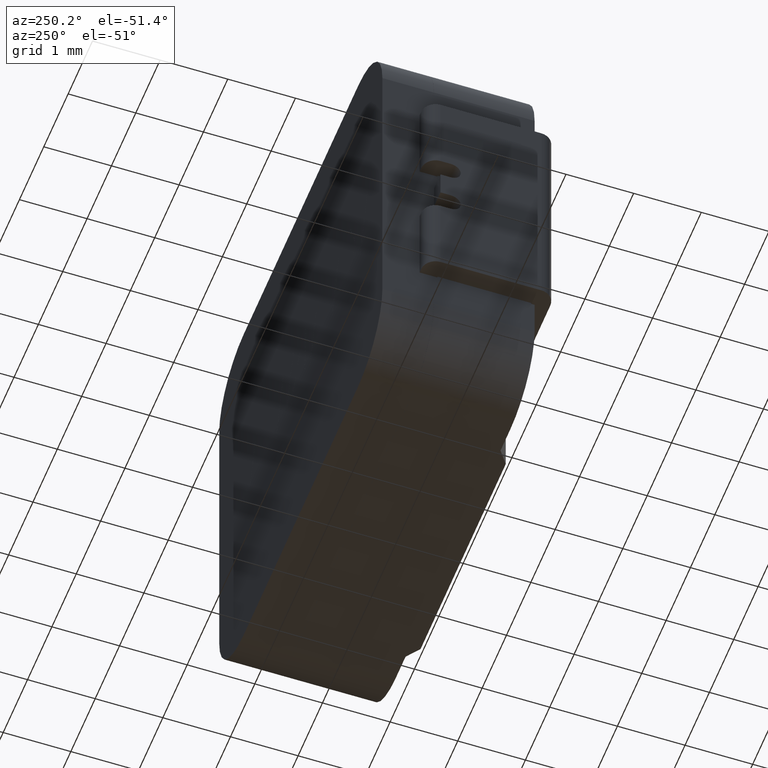
[diagram: clean part render]
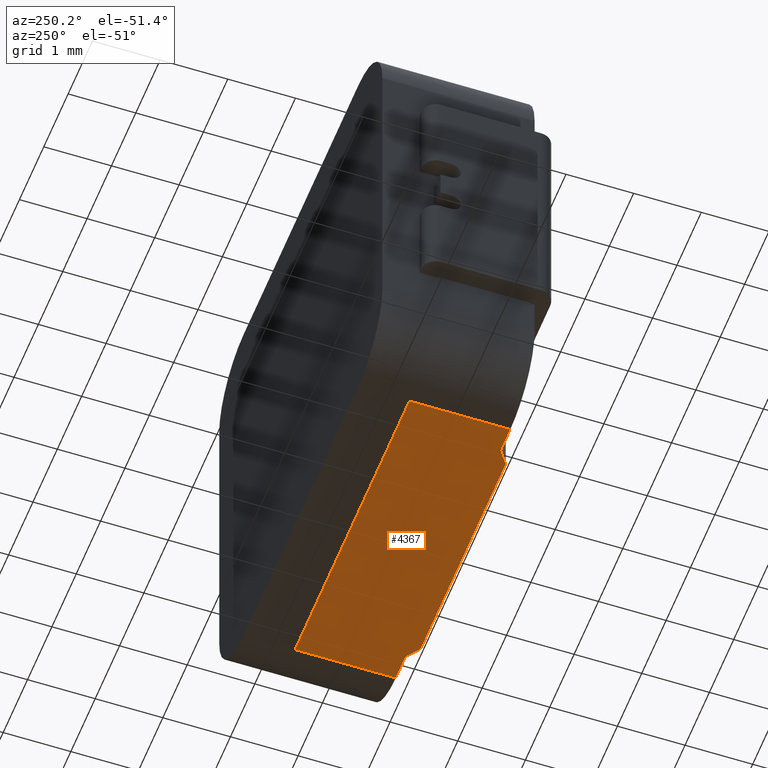
[diagram: same view with one face highlighted and labeled with its STEP entity id]
A machine part, auxiliary view. The second image highlights one B-rep face of the part: STEP entity #4367.
In plain terms, the highlighted planar face has unit normal (0, -0, 1).
Its self-contained STEP definition (entity closure, byte-faithful):
#146 = CARTESIAN_POINT ( 'NONE',  ( -1.749999999999999334, 0.0000000000000000000, -3.350000000000000089 ) ) ;
#347 = EDGE_CURVE ( 'NONE', #5087, #5169, #2896, .T. ) ;
#408 = CARTESIAN_POINT ( 'NONE',  ( 2.349999999999998312, 1.639999999999999902, -3.350000000000000977 ) ) ;
#411 = LINE ( 'NONE', #1496, #1729 ) ;
#475 = VECTOR ( 'NONE', #1066, 1000.000000000000000 ) ;
#500 = ORIENTED_EDGE ( 'NONE', *, *, #1605, .T. ) ;
#503 = CARTESIAN_POINT ( 'NONE',  ( 2.349999999999998312, 0.1500000000000002165, -3.350000000000001421 ) ) ;
#533 = CARTESIAN_POINT ( 'NONE',  ( -3.350000000000000089, 0.1499999999999999944, -3.350000000000001421 ) ) ;
#548 = DIRECTION ( 'NONE',  ( -0.7999999999999998224, 0.6000000000000001998, -0.0000000000000000000 ) ) ;
#700 = ORIENTED_EDGE ( 'NONE', *, *, #4140, .F. ) ;
#862 = VECTOR ( 'NONE', #3634, 1000.000000000000000 ) ;
#919 = EDGE_CURVE ( 'NONE', #6697, #1179, #4511, .T. ) ;
#1066 = DIRECTION ( 'NONE',  ( -1.000000000000000000, 0.0000000000000000000, 2.589139516383295297E-16 ) ) ;
#1179 = VERTEX_POINT ( 'NONE', #6288 ) ;
#1351 = CARTESIAN_POINT ( 'NONE',  ( -3.350000000000000089, 0.0000000000000000000, -3.349999999999999645 ) ) ;
#1384 = DIRECTION ( 'NONE',  ( -0.7999999999999998224, -0.6000000000000001998, 0.0000000000000000000 ) ) ;
#1395 = EDGE_CURVE ( 'NONE', #1179, #5276, #2141, .T. ) ;
#1496 = CARTESIAN_POINT ( 'NONE',  ( -1.949999999999999289, 0.1499999999999999667, -3.350000000000001421 ) ) ;
#1518 = DIRECTION ( 'NONE',  ( 0.0000000000000000000, -1.000000000000000000, 0.0000000000000000000 ) ) ;
#1544 = CARTESIAN_POINT ( 'NONE',  ( -3.350000000000000089, 1.639999999999999902, -3.349999999999999645 ) ) ;
#1562 = EDGE_CURVE ( 'NONE', #2156, #6475, #6050, .T. ) ;
#1605 = EDGE_CURVE ( 'NONE', #5088, #2156, #4617, .T. ) ;
#1721 = VECTOR ( 'NONE', #6251, 1000.000000000000000 ) ;
#1729 = VECTOR ( 'NONE', #548, 999.9999999999998863 ) ;
#1904 = AXIS2_PLACEMENT_3D ( 'NONE', #5785, #2186, #3166 ) ;
#2141 = LINE ( 'NONE', #3456, #3370 ) ;
#2156 = VERTEX_POINT ( 'NONE', #503 ) ;
#2186 = DIRECTION ( 'NONE',  ( 2.589139516383295297E-16, -0.0000000000000000000, 1.000000000000000000 ) ) ;
#2400 = ORIENTED_EDGE ( 'NONE', *, *, #919, .T. ) ;
#2481 = VECTOR ( 'NONE', #3618, 1000.000000000000000 ) ;
#2896 = LINE ( 'NONE', #1351, #2481 ) ;
#2942 = VECTOR ( 'NONE', #1384, 999.9999999999998863 ) ;
#2962 = ORIENTED_EDGE ( 'NONE', *, *, #4792, .T. ) ;
#2985 = ORIENTED_EDGE ( 'NONE', *, *, #1395, .T. ) ;
#3079 = ORIENTED_EDGE ( 'NONE', *, *, #1562, .T. ) ;
#3166 = DIRECTION ( 'NONE',  ( 1.000000000000000000, 0.0000000000000000000, -2.589139516383295297E-16 ) ) ;
#3185 = LINE ( 'NONE', #3986, #2942 ) ;
#3265 = VECTOR ( 'NONE', #1518, 1000.000000000000000 ) ;
#3370 = VECTOR ( 'NONE', #4935, 1000.000000000000000 ) ;
#3436 = LINE ( 'NONE', #1544, #475 ) ;
#3456 = CARTESIAN_POINT ( 'NONE',  ( -2.350000000000000533, 2.399999999999999911, -3.350000000000000089 ) ) ;
#3580 = FACE_OUTER_BOUND ( 'NONE', #4011, .T. ) ;
#3602 = CARTESIAN_POINT ( 'NONE',  ( 3.350000000000001865, 0.1500000000000007994, -3.350000000000001421 ) ) ;
#3618 = DIRECTION ( 'NONE',  ( -1.000000000000000000, -0.0000000000000000000, 2.589139516383295297E-16 ) ) ;
#3634 = DIRECTION ( 'NONE',  ( -1.000000000000000000, 1.936075308009828246E-17, -0.0000000000000000000 ) ) ;
#3807 = ORIENTED_EDGE ( 'NONE', *, *, #347, .T. ) ;
#3986 = CARTESIAN_POINT ( 'NONE',  ( 1.950000000000000622, 0.1499999999999999667, -3.350000000000001421 ) ) ;
#4011 = EDGE_LOOP ( 'NONE', ( #700, #500, #3079, #4146, #3807, #2962, #2400, #2985 ) ) ;
#4140 = EDGE_CURVE ( 'NONE', #5088, #5276, #3436, .T. ) ;
#4146 = ORIENTED_EDGE ( 'NONE', *, *, #5455, .T. ) ;
#4297 = CARTESIAN_POINT ( 'NONE',  ( -2.350000000000000533, 1.639999999999999902, -3.350000000000000089 ) ) ;
#4367 = ADVANCED_FACE ( 'NONE', ( #3580 ), #6674, .F. ) ;
#4511 = LINE ( 'NONE', #533, #862 ) ;
#4617 = LINE ( 'NONE', #6770, #3265 ) ;
#4792 = EDGE_CURVE ( 'NONE', #5169, #6697, #411, .T. ) ;
#4935 = DIRECTION ( 'NONE',  ( -0.0000000000000000000, 1.000000000000000000, 0.0000000000000000000 ) ) ;
#5030 = CARTESIAN_POINT ( 'NONE',  ( 1.950000000000000622, 0.1499999999999999667, -3.350000000000001421 ) ) ;
#5087 = VERTEX_POINT ( 'NONE', #6650 ) ;
#5088 = VERTEX_POINT ( 'NONE', #408 ) ;
#5169 = VERTEX_POINT ( 'NONE', #146 ) ;
#5276 = VERTEX_POINT ( 'NONE', #4297 ) ;
#5455 = EDGE_CURVE ( 'NONE', #6475, #5087, #3185, .T. ) ;
#5785 = CARTESIAN_POINT ( 'NONE',  ( -3.350000000000000089, 2.399999999999999911, -3.349999999999999645 ) ) ;
#6050 = LINE ( 'NONE', #3602, #1721 ) ;
#6251 = DIRECTION ( 'NONE',  ( -1.000000000000000000, -6.001833454830465621E-16, 0.0000000000000000000 ) ) ;
#6288 = CARTESIAN_POINT ( 'NONE',  ( -2.350000000000000533, 0.1499999999999999667, -3.350000000000001421 ) ) ;
#6475 = VERTEX_POINT ( 'NONE', #5030 ) ;
#6650 = CARTESIAN_POINT ( 'NONE',  ( 1.750000000000000666, 0.0000000000000000000, -3.350000000000001421 ) ) ;
#6674 = PLANE ( 'NONE',  #1904 ) ;
#6697 = VERTEX_POINT ( 'NONE', #6720 ) ;
#6720 = CARTESIAN_POINT ( 'NONE',  ( -1.949999999999999289, 0.1499999999999999667, -3.350000000000001421 ) ) ;
#6770 = CARTESIAN_POINT ( 'NONE',  ( 2.349999999999998312, 2.399999999999999911, -3.350000000000000977 ) ) ;